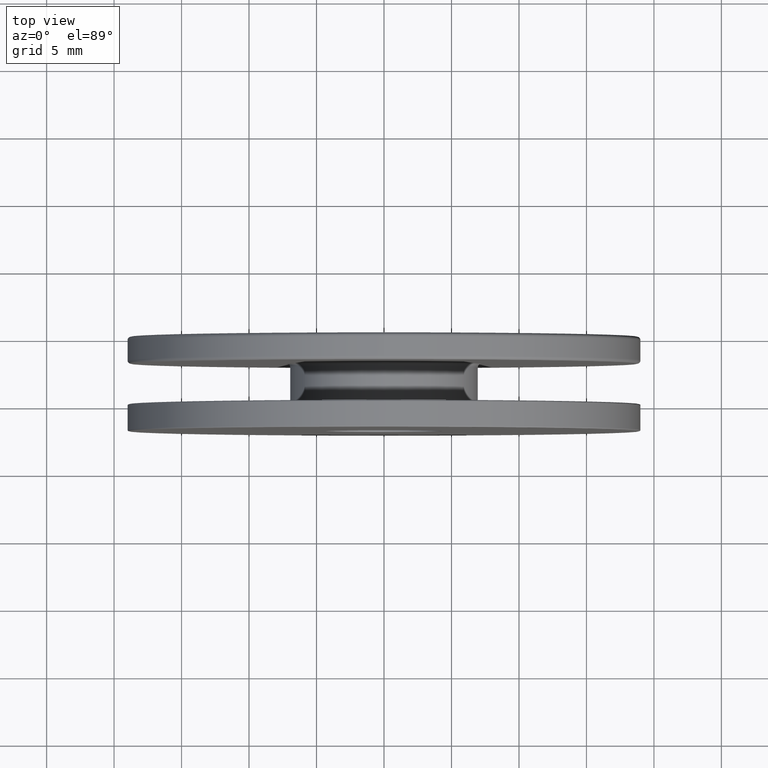
[diagram: clean part render]
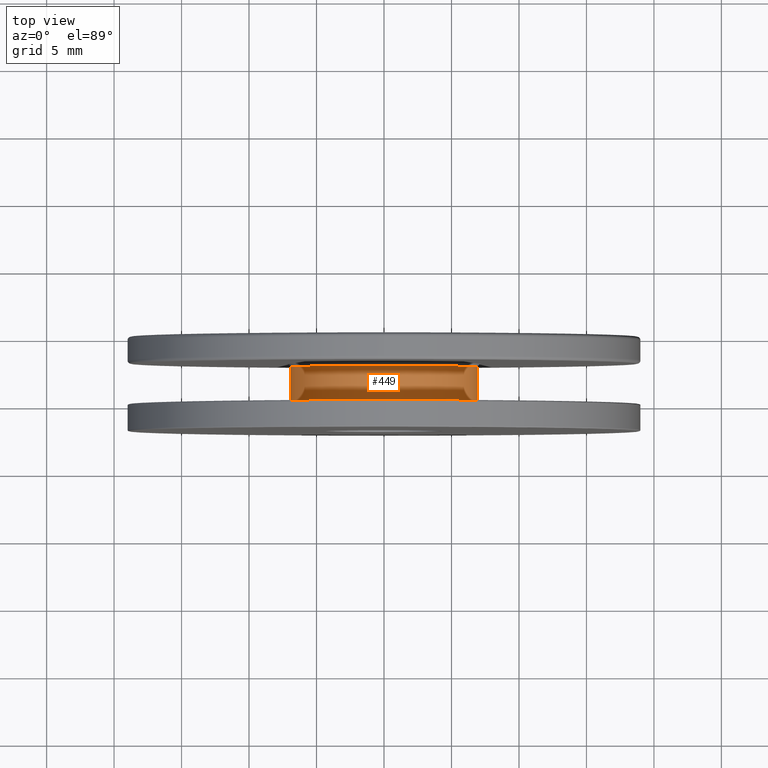
[diagram: same view with one face highlighted and labeled with its STEP entity id]
A machine part, top view. The second image highlights one B-rep face of the part: STEP entity #449.
In plain terms, the highlighted cylindrical surface (bore or boss wall) has radius 7 mm, axis along (-0, 1, 0).
Its self-contained STEP definition (entity closure, byte-faithful):
#17 = AXIS2_PLACEMENT_3D ( 'NONE', #183, #639, #694 ) ;
#35 = CARTESIAN_POINT ( 'NONE',  ( 0.000000000000000000, 4.750000000000000000, 6.999999999999999112 ) ) ;
#175 = AXIS2_PLACEMENT_3D ( 'NONE', #531, #191, #643 ) ;
#179 = DIRECTION ( 'NONE',  ( 0.000000000000000000, 0.000000000000000000, -1.000000000000000000 ) ) ;
#183 = CARTESIAN_POINT ( 'NONE',  ( 0.000000000000000000, 4.750000000000000000, 0.000000000000000000 ) ) ;
#191 = DIRECTION ( 'NONE',  ( 0.000000000000000000, 1.000000000000000000, 0.000000000000000000 ) ) ;
#202 = ORIENTED_EDGE ( 'NONE', *, *, #522, .T. ) ;
#253 = EDGE_LOOP ( 'NONE', ( #202 ) ) ;
#282 = FACE_OUTER_BOUND ( 'NONE', #253, .T. ) ;
#306 = CYLINDRICAL_SURFACE ( 'NONE', #708, 6.999999999999999112 ) ;
#365 = FACE_OUTER_BOUND ( 'NONE', #695, .T. ) ;
#430 = CARTESIAN_POINT ( 'NONE',  ( 0.000000000000000000, 2.249999999999999556, 6.999999999999999112 ) ) ;
#449 = ADVANCED_FACE ( 'NONE', ( #282, #365 ), #306, .T. ) ;
#454 = CIRCLE ( 'NONE', #175, 6.999999999999999112 ) ;
#474 = VERTEX_POINT ( 'NONE', #430 ) ;
#503 = VERTEX_POINT ( 'NONE', #35 ) ;
#522 = EDGE_CURVE ( 'NONE', #503, #503, #683, .T. ) ;
#531 = CARTESIAN_POINT ( 'NONE',  ( 0.000000000000000000, 2.249999999999999556, 0.000000000000000000 ) ) ;
#575 = DIRECTION ( 'NONE',  ( -0.000000000000000000, -1.000000000000000000, -0.000000000000000000 ) ) ;
#608 = ORIENTED_EDGE ( 'NONE', *, *, #633, .T. ) ;
#633 = EDGE_CURVE ( 'NONE', #474, #474, #454, .T. ) ;
#639 = DIRECTION ( 'NONE',  ( -0.000000000000000000, -1.000000000000000000, -0.000000000000000000 ) ) ;
#643 = DIRECTION ( 'NONE',  ( 0.000000000000000000, 0.000000000000000000, 1.000000000000000000 ) ) ;
#683 = CIRCLE ( 'NONE', #17, 6.999999999999999112 ) ;
#684 = CARTESIAN_POINT ( 'NONE',  ( 0.000000000000000000, 0.000000000000000000, 0.000000000000000000 ) ) ;
#694 = DIRECTION ( 'NONE',  ( 0.000000000000000000, 0.000000000000000000, 1.000000000000000000 ) ) ;
#695 = EDGE_LOOP ( 'NONE', ( #608 ) ) ;
#708 = AXIS2_PLACEMENT_3D ( 'NONE', #684, #575, #179 ) ;